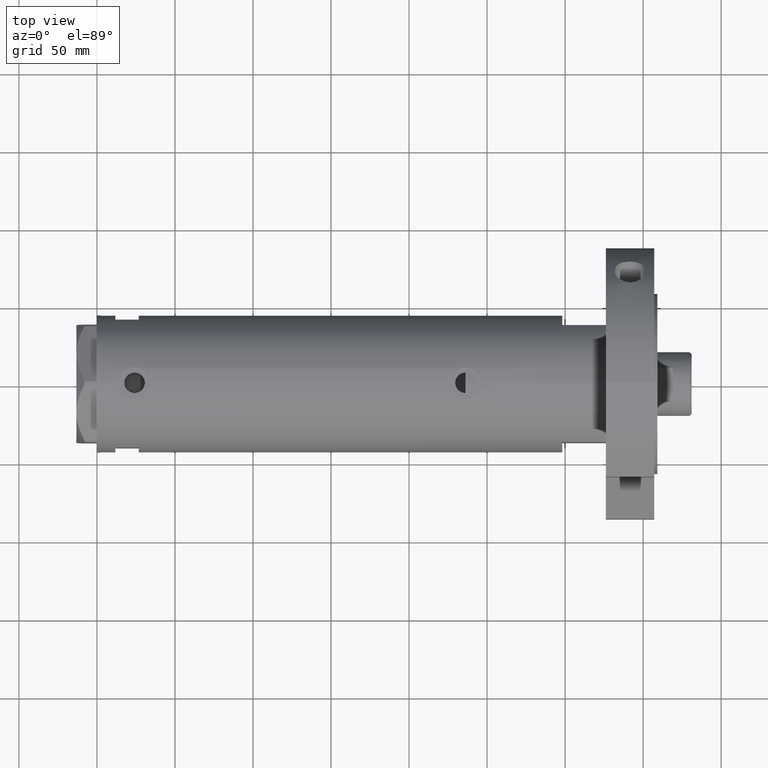
[diagram: clean part render]
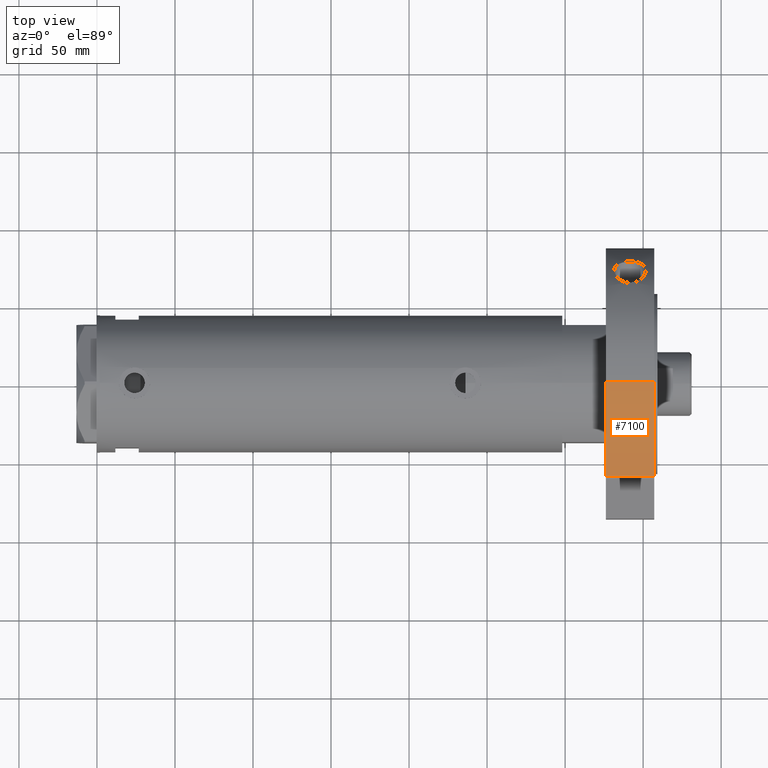
[diagram: same view with one face highlighted and labeled with its STEP entity id]
A machine part, top view. The second image highlights one B-rep face of the part: STEP entity #7100.
In plain terms, the highlighted cylindrical surface (partial cylindrical patch) has radius 87 mm, axis along (-1, -0, 0).
Its self-contained STEP definition (entity closure, byte-faithful):
#213 = AXIS2_PLACEMENT_3D ( 'NONE', #7221, #7139, #4264 ) ;
#365 = EDGE_CURVE ( 'NONE', #6923, #5174, #1988, .T. ) ;
#951 = ORIENTED_EDGE ( 'NONE', *, *, #3467, .T. ) ;
#1250 = ORIENTED_EDGE ( 'NONE', *, *, #7191, .F. ) ;
#1416 = VERTEX_POINT ( 'NONE', #3331 ) ;
#1455 = DIRECTION ( 'NONE',  ( -0.000000000000000000, -0.000000000000000000, -1.000000000000000000 ) ) ;
#1886 = VERTEX_POINT ( 'NONE', #3447 ) ;
#1988 = LINE ( 'NONE', #7226, #3482 ) ;
#2151 = DIRECTION ( 'NONE',  ( 0.000000000000000000, 0.000000000000000000, 1.000000000000000000 ) ) ;
#2324 = LINE ( 'NONE', #5635, #7058 ) ;
#2724 = CARTESIAN_POINT ( 'NONE',  ( 0.000000000000000000, 0.000000000000000000, 31.00000000000000000 ) ) ;
#2730 = EDGE_LOOP ( 'NONE', ( #1250, #6538, #951, #4422 ) ) ;
#3286 = CIRCLE ( 'NONE', #4138, 87.00000000000000000 ) ;
#3331 = CARTESIAN_POINT ( 'NONE',  ( 62.54236590573034249, 60.47687547247904405, 0.000000000000000000 ) ) ;
#3447 = CARTESIAN_POINT ( 'NONE',  ( 62.54236590573034249, 60.47687547247904405, 31.00000000000000000 ) ) ;
#3467 = EDGE_CURVE ( 'NONE', #5174, #1416, #5067, .T. ) ;
#3482 = VECTOR ( 'NONE', #1455, 1000.000000000000000 ) ;
#4138 = AXIS2_PLACEMENT_3D ( 'NONE', #5022, #2151, #6350 ) ;
#4264 = DIRECTION ( 'NONE',  ( 1.000000000000000000, 0.000000000000000000, 0.000000000000000000 ) ) ;
#4371 = AXIS2_PLACEMENT_3D ( 'NONE', #2724, #5062, #6836 ) ;
#4422 = ORIENTED_EDGE ( 'NONE', *, *, #4884, .T. ) ;
#4501 = CYLINDRICAL_SURFACE ( 'NONE', #4371, 87.00000000000000000 ) ;
#4527 = DIRECTION ( 'NONE',  ( -0.000000000000000000, -0.000000000000000000, 1.000000000000000000 ) ) ;
#4884 = EDGE_CURVE ( 'NONE', #1416, #1886, #2324, .T. ) ;
#5022 = CARTESIAN_POINT ( 'NONE',  ( 0.000000000000000000, 0.000000000000000000, 31.00000000000000000 ) ) ;
#5062 = DIRECTION ( 'NONE',  ( -0.000000000000000000, -0.000000000000000000, -1.000000000000000000 ) ) ;
#5067 = CIRCLE ( 'NONE', #213, 87.00000000000000000 ) ;
#5174 = VERTEX_POINT ( 'NONE', #5509 ) ;
#5273 = CARTESIAN_POINT ( 'NONE',  ( 87.00000000000000000, 1.065442715258197209E-14, 31.00000000000000000 ) ) ;
#5509 = CARTESIAN_POINT ( 'NONE',  ( 87.00000000000000000, 1.065442715258197209E-14, 0.000000000000000000 ) ) ;
#5635 = CARTESIAN_POINT ( 'NONE',  ( 62.54236590573034249, 60.47687547247904405, 0.000000000000000000 ) ) ;
#5734 = FACE_OUTER_BOUND ( 'NONE', #2730, .T. ) ;
#6350 = DIRECTION ( 'NONE',  ( 1.000000000000000000, 0.000000000000000000, 0.000000000000000000 ) ) ;
#6538 = ORIENTED_EDGE ( 'NONE', *, *, #365, .T. ) ;
#6836 = DIRECTION ( 'NONE',  ( -1.000000000000000000, 0.000000000000000000, 0.000000000000000000 ) ) ;
#6923 = VERTEX_POINT ( 'NONE', #5273 ) ;
#7058 = VECTOR ( 'NONE', #4527, 1000.000000000000000 ) ;
#7100 = ADVANCED_FACE ( 'NONE', ( #5734 ), #4501, .T. ) ;
#7139 = DIRECTION ( 'NONE',  ( 0.000000000000000000, 0.000000000000000000, 1.000000000000000000 ) ) ;
#7191 = EDGE_CURVE ( 'NONE', #6923, #1886, #3286, .T. ) ;
#7221 = CARTESIAN_POINT ( 'NONE',  ( 0.000000000000000000, 0.000000000000000000, 0.000000000000000000 ) ) ;
#7226 = CARTESIAN_POINT ( 'NONE',  ( 87.00000000000000000, 1.065442715258197209E-14, 31.00000000000000000 ) ) ;